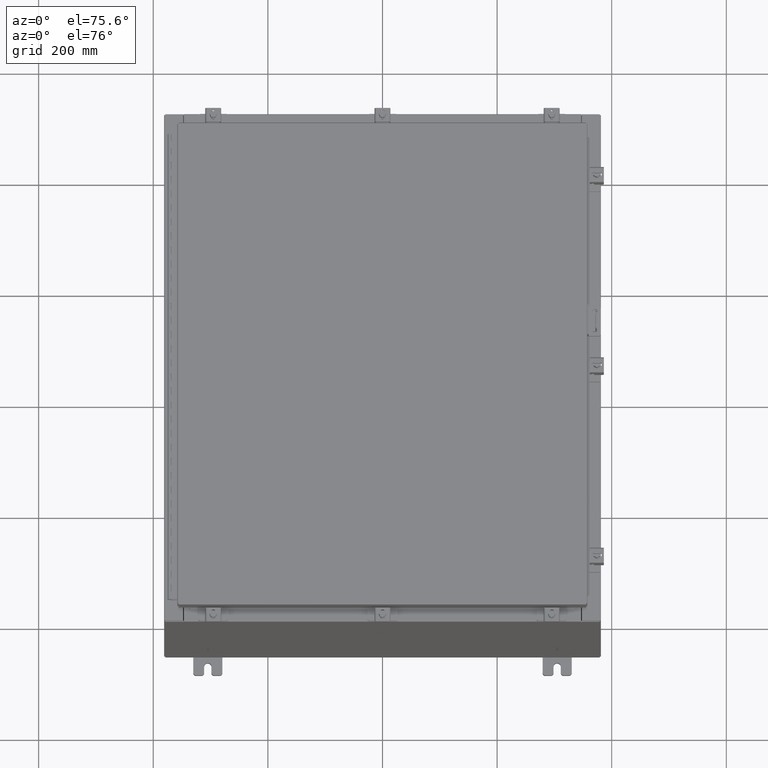
[diagram: clean part render]
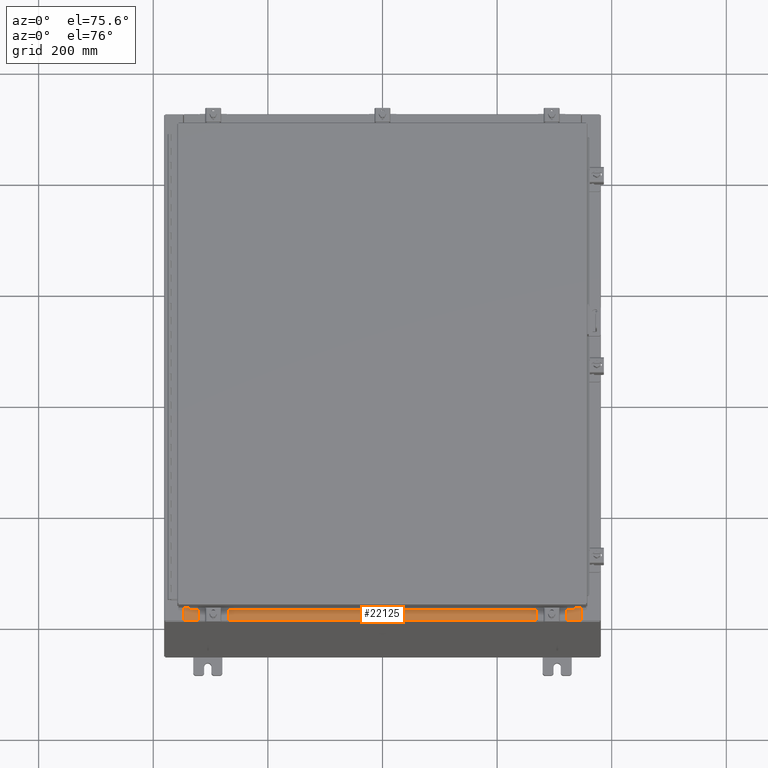
[diagram: same view with one face highlighted and labeled with its STEP entity id]
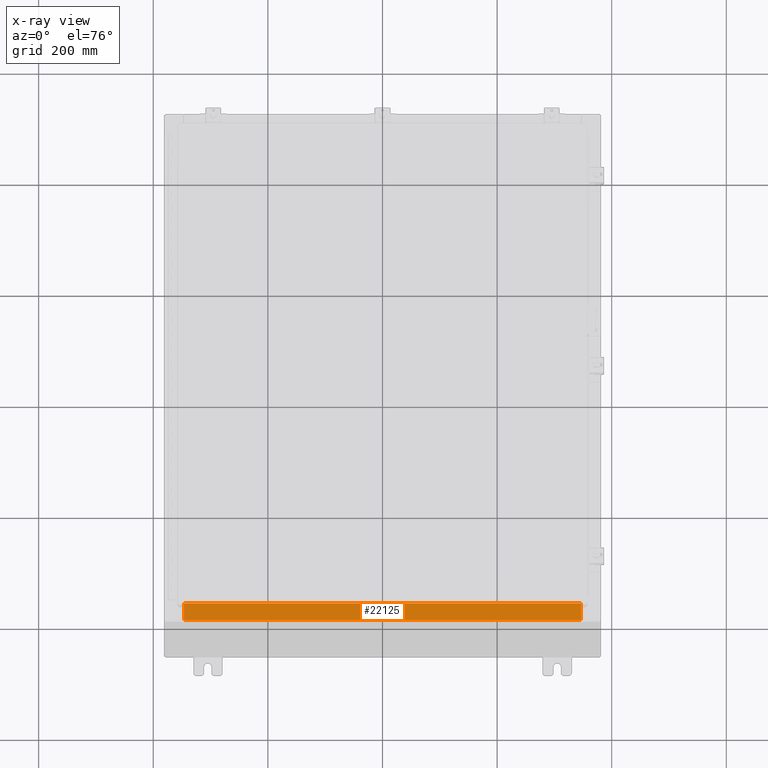
[diagram: x-ray of the same camera — body ghosted, the highlighted face saturated]
A machine part, auxiliary view. The second image highlights one B-rep face of the part: STEP entity #22125.
The next image is the same camera in x-ray: the body ghosted, the highlighted face saturated — about 0% of this face is hidden behind the body in this view.
In plain terms, the highlighted planar face has unit normal (-0, -0, 1).
Its self-contained STEP definition (entity closure, byte-faithful):
#2142 = CARTESIAN_POINT ( 'NONE',  ( 13.63719999999999800, -1.287299999999999900, 5.000000000000004400 ) ) ;
#2439 = DIRECTION ( 'NONE',  ( -1.000000000000000000, -4.006464660875052000E-017, 1.428858021605520200E-031 ) ) ;
#3878 = LINE ( 'NONE', #18889, #11659 ) ;
#4058 = VECTOR ( 'NONE', #37008, 39.37007874015748100 ) ;
#7569 = CARTESIAN_POINT ( 'NONE',  ( 13.63719999999999800, -1.287299999999999900, 5.000000000000002700 ) ) ;
#8182 = VERTEX_POINT ( 'NONE', #2142 ) ;
#11659 = VECTOR ( 'NONE', #32311, 39.37007874015748100 ) ;
#11991 = EDGE_CURVE ( 'NONE', #37489, #8182, #21778, .T. ) ;
#15151 = FACE_OUTER_BOUND ( 'NONE', #21725, .T. ) ;
#15823 = CARTESIAN_POINT ( 'NONE',  ( 0.0000000000000000000, 1.782631094477737600E-014, 5.000000000000000000 ) ) ;
#18690 = VERTEX_POINT ( 'NONE', #33204 ) ;
#18889 = CARTESIAN_POINT ( 'NONE',  ( -13.63720000000000400, -0.07469999999999973900, 5.000000000000000000 ) ) ;
#19146 = DIRECTION ( 'NONE',  ( 0.0000000000000000000, -1.000000000000000000, 3.566381192773190000E-015 ) ) ;
#21725 = EDGE_LOOP ( 'NONE', ( #29963, #27356, #37478, #35547 ) ) ;
#21778 = LINE ( 'NONE', #36969, #4058 ) ;
#22125 = ADVANCED_FACE ( 'NONE', ( #15151 ), #25712, .T. ) ;
#23925 = EDGE_CURVE ( 'NONE', #8182, #42041, #25499, .T. ) ;
#24770 = EDGE_CURVE ( 'NONE', #37489, #18690, #24906, .T. ) ;
#24906 = LINE ( 'NONE', #42428, #40596 ) ;
#25499 = LINE ( 'NONE', #7569, #33333 ) ;
#25712 = PLANE ( 'NONE',  #34115 ) ;
#27356 = ORIENTED_EDGE ( 'NONE', *, *, #23925, .F. ) ;
#27726 = DIRECTION ( 'NONE',  ( -1.000000000000000000, 0.0000000000000000000, 0.0000000000000000000 ) ) ;
#29963 = ORIENTED_EDGE ( 'NONE', *, *, #38769, .F. ) ;
#30550 = CARTESIAN_POINT ( 'NONE',  ( -13.63720000000000400, -1.287299999999999200, 5.000000000000004400 ) ) ;
#32311 = DIRECTION ( 'NONE',  ( -0.0000000000000000000, 1.000000000000000000, -3.566381192773190000E-015 ) ) ;
#33204 = CARTESIAN_POINT ( 'NONE',  ( -13.63720000000000400, -0.08770000000000081900, 5.000000000000000000 ) ) ;
#33333 = VECTOR ( 'NONE', #27726, 39.37007874015748100 ) ;
#34115 = AXIS2_PLACEMENT_3D ( 'NONE', #15823, #39142, #19146 ) ;
#35160 = CARTESIAN_POINT ( 'NONE',  ( 13.63719999999999800, -0.08770000000000047200, 5.000000000000000000 ) ) ;
#35547 = ORIENTED_EDGE ( 'NONE', *, *, #24770, .T. ) ;
#36969 = CARTESIAN_POINT ( 'NONE',  ( 13.63719999999999800, -1.300299999999999800, 5.000000000000004400 ) ) ;
#37008 = DIRECTION ( 'NONE',  ( -0.0000000000000000000, -1.000000000000000000, 3.566381192773190000E-015 ) ) ;
#37478 = ORIENTED_EDGE ( 'NONE', *, *, #11991, .F. ) ;
#37489 = VERTEX_POINT ( 'NONE', #35160 ) ;
#38769 = EDGE_CURVE ( 'NONE', #42041, #18690, #3878, .T. ) ;
#39142 = DIRECTION ( 'NONE',  ( 0.0000000000000000000, 3.566381192773190000E-015, 1.000000000000000000 ) ) ;
#40596 = VECTOR ( 'NONE', #2439, 39.37007874015748100 ) ;
#42041 = VERTEX_POINT ( 'NONE', #30550 ) ;
#42428 = CARTESIAN_POINT ( 'NONE',  ( 3.513669507588167300E-018, -0.08770000000000081900, 5.000000000000000000 ) ) ;